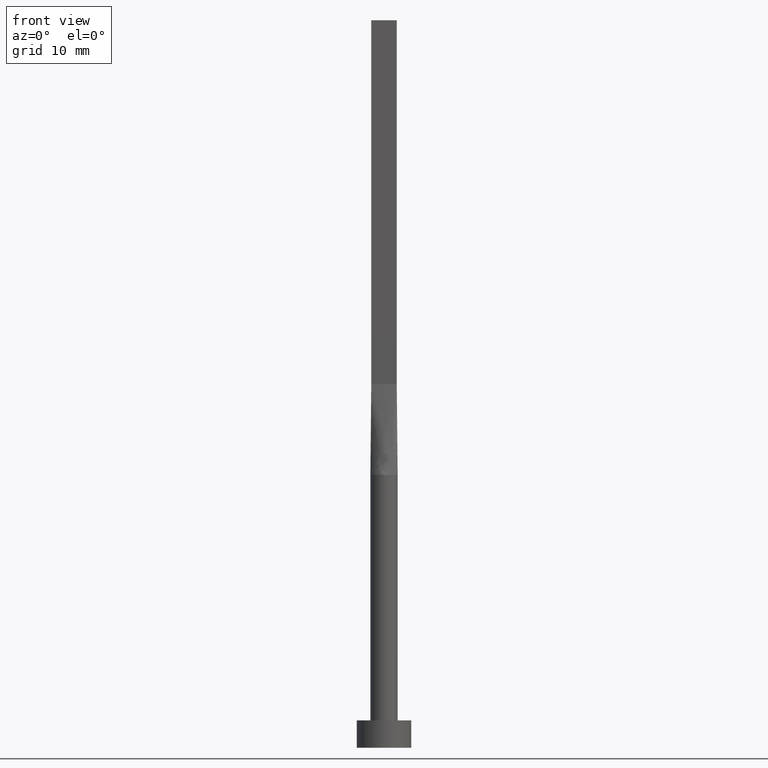
[diagram: clean part render]
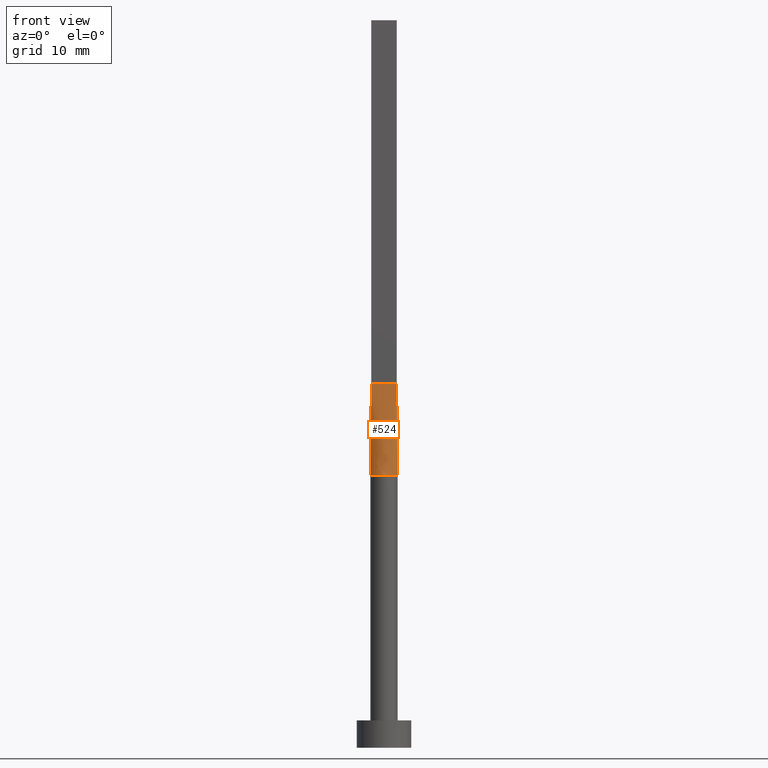
[diagram: same view with one face highlighted and labeled with its STEP entity id]
A machine part, front view. The second image highlights one B-rep face of the part: STEP entity #524.
In plain terms, the highlighted face is a freeform B-spline surface patch.
Its self-contained STEP definition (entity closure, byte-faithful):
#1 = CIRCLE ( 'NONE', #76, 1.500000000000000222 ) ;
#11 = CARTESIAN_POINT ( 'NONE',  ( 0.4035854070682468042, -1.457676878506885210, 30.00000000000000355 ) ) ;
#17 = CARTESIAN_POINT ( 'NONE',  ( 0.1166666666666671959, -0.2999999999999997113, 39.99999999999999289 ) ) ;
#19 = ORIENTED_EDGE ( 'NONE', *, *, #304, .T. ) ;
#59 = CARTESIAN_POINT ( 'NONE',  ( -1.283333333333333215, -0.2999999999999996003, 39.99999999999999289 ) ) ;
#65 = DIRECTION ( 'NONE',  ( 1.000000000000000000, 0.000000000000000000, 0.000000000000000000 ) ) ;
#68 = CARTESIAN_POINT ( 'NONE',  ( 1.399999999999999911, -0.2999999999999997669, 40.00000000000000000 ) ) ;
#72 = CARTESIAN_POINT ( 'NONE',  ( -0.1166666666666661550, -0.2999999999999997669, 40.00000000000000000 ) ) ;
#76 = AXIS2_PLACEMENT_3D ( 'NONE', #291, #286, #65 ) ;
#91 = CARTESIAN_POINT ( 'NONE',  ( 0.7614511870148451544, -1.306864626778804439, 30.00000000000001066 ) ) ;
#100 = CARTESIAN_POINT ( 'NONE',  ( 1.466854622690809462, -0.3143260906982852099, 30.00000000000000000 ) ) ;
#104 = CARTESIAN_POINT ( 'NONE',  ( 0.9333333333333337922, -0.2999999999999997113, 39.99999999999999289 ) ) ;
#108 = CARTESIAN_POINT ( 'NONE',  ( 1.399999999999999911, -0.2999999999999997669, 40.00000000000000000 ) ) ;
#111 = LINE ( 'NONE', #414, #409 ) ;
#112 = CARTESIAN_POINT ( 'NONE',  ( -0.2333333333333328374, -0.2999999999999997113, 39.99999999999999289 ) ) ;
#115 = CARTESIAN_POINT ( 'NONE',  ( 0.8166666666666669849, -0.2999999999999997113, 39.99999999999999289 ) ) ;
#138 = VECTOR ( 'NONE', #562, 1000.000000000000000 ) ;
#145 = FACE_OUTER_BOUND ( 'NONE', #567, .T. ) ;
#152 = CARTESIAN_POINT ( 'NONE',  ( 0.5833333333333337034, -0.2999999999999997113, 39.99999999999999289 ) ) ;
#157 = CARTESIAN_POINT ( 'NONE',  ( -1.166666666666666297, -0.2999999999999996003, 39.99999999999999289 ) ) ;
#160 = VERTEX_POINT ( 'NONE', #303 ) ;
#161 = EDGE_CURVE ( 'NONE', #160, #530, #215, .T. ) ;
#184 = CARTESIAN_POINT ( 'NONE',  ( 0.2333333333333338366, -0.2999999999999997113, 39.99999999999999289 ) ) ;
#198 = CARTESIAN_POINT ( 'NONE',  ( -1.398339371956842880, -0.5625704264602655602, 29.99999999999999289 ) ) ;
#202 = CARTESIAN_POINT ( 'NONE',  ( -0.5833333333333329263, -0.2999999999999996558, 39.99999999999999289 ) ) ;
#208 = VERTEX_POINT ( 'NONE', #100 ) ;
#209 = VECTOR ( 'NONE', #580, 1000.000000000000114 ) ;
#215 = LINE ( 'NONE', #517, #138 ) ;
#229 = LINE ( 'NONE', #332, #209 ) ;
#242 = CARTESIAN_POINT ( 'NONE',  ( -1.261673556793542206, -0.8246322331683838547, 29.99999999999998934 ) ) ;
#245 = DIRECTION ( 'NONE',  ( -0.006670206908340743472, -0.001429330051787282068, -0.9999767324070110153 ) ) ;
#252 = CARTESIAN_POINT ( 'NONE',  ( -0.4035854070682473038, -1.457676878506884988, 30.00000000000001066 ) ) ;
#273 = CARTESIAN_POINT ( 'NONE',  ( 1.166666666666666963, -0.2999999999999997113, 39.99999999999999289 ) ) ;
#278 = CARTESIAN_POINT ( 'NONE',  ( -1.466837926445876628, -0.3143226152917824034, 30.00000000000000000 ) ) ;
#284 = CARTESIAN_POINT ( 'NONE',  ( -1.399999999999999911, -0.2999999999999996003, 40.00000000000000000 ) ) ;
#286 = DIRECTION ( 'NONE',  ( 0.000000000000000000, 0.000000000000000000, 1.000000000000000000 ) ) ;
#290 = CARTESIAN_POINT ( 'NONE',  ( -0.8166666666666663188, -0.2999999999999996003, 39.99999999999999289 ) ) ;
#291 = CARTESIAN_POINT ( 'NONE',  ( 0.000000000000000000, 0.000000000000000000, 30.00000000000000000 ) ) ;
#294 = CARTESIAN_POINT ( 'NONE',  ( 1.283333333333333437, -0.2999999999999997113, 39.99999999999999289 ) ) ;
#303 = CARTESIAN_POINT ( 'NONE',  ( -1.399999999999999911, -0.2999999999999996003, 40.00000000000000000 ) ) ;
#304 = EDGE_CURVE ( 'NONE', #351, #208, #1, .T. ) ;
#322 = CARTESIAN_POINT ( 'NONE',  ( -1.466703621116114409, -0.3142936330963096436, 30.00000000000000000 ) ) ;
#328 = CARTESIAN_POINT ( 'NONE',  ( 0.4666666666666671737, -0.2999999999999997113, 39.99999999999999289 ) ) ;
#332 = CARTESIAN_POINT ( 'NONE',  ( 1.433351810558057160, -0.3071468165481548440, 35.00000000000000000 ) ) ;
#336 = CARTESIAN_POINT ( 'NONE',  ( 0.9173979595380676866, -1.199399801402031063, 30.00000000000000711 ) ) ;
#351 = VERTEX_POINT ( 'NONE', #278 ) ;
#361 = EDGE_CURVE ( 'NONE', #160, #351, #111, .T. ) ;
#375 = ORIENTED_EDGE ( 'NONE', *, *, #361, .T. ) ;
#377 = CARTESIAN_POINT ( 'NONE',  ( -0.7614511870148455985, -1.306864626778803995, 30.00000000000000711 ) ) ;
#409 = VECTOR ( 'NONE', #245, 1000.000000000000114 ) ;
#414 = CARTESIAN_POINT ( 'NONE',  ( -1.433351810558057160, -0.3071468165481546220, 35.00000000000000000 ) ) ;
#425 = CARTESIAN_POINT ( 'NONE',  ( -1.167251067653077845, -0.9579686032593084377, 30.00000000000000355 ) ) ;
#430 = CARTESIAN_POINT ( 'NONE',  ( 1.167251067653077401, -0.9579686032593089928, 30.00000000000001066 ) ) ;
#433 = ORIENTED_EDGE ( 'NONE', *, *, #561, .T. ) ;
#451 = CARTESIAN_POINT ( 'NONE',  ( 1.261673556793541762, -0.8246322331683848539, 30.00000000000000000 ) ) ;
#461 = CARTESIAN_POINT ( 'NONE',  ( -1.441093865018553632, -0.4338058282182608583, 29.99999999999999645 ) ) ;
#462 = CARTESIAN_POINT ( 'NONE',  ( -0.4666666666666662300, -0.2999999999999997113, 39.99999999999999289 ) ) ;
#468 = CARTESIAN_POINT ( 'NONE',  ( 1.441093865018553410, -0.4338058282182614689, 30.00000000000000355 ) ) ;
#472 = CARTESIAN_POINT ( 'NONE',  ( -0.9333333333333329040, -0.2999999999999996003, 39.99999999999999289 ) ) ;
#476 = CARTESIAN_POINT ( 'NONE',  ( -0.2021039475585066081, -1.499999999999999778, 30.00000000000000000 ) ) ;
#507 = CARTESIAN_POINT ( 'NONE',  ( 1.398339371956842880, -0.5625704264602661153, 29.99999999999999645 ) ) ;
#517 = CARTESIAN_POINT ( 'NONE',  ( -1.399999999999999911, -0.2999999999999996003, 40.00000000000000000 ) ) ;
#524 = ADVANCED_FACE ( 'NONE', ( #145 ), #533, .T. ) ;
#530 = VERTEX_POINT ( 'NONE', #108 ) ;
#533 = B_SPLINE_SURFACE_WITH_KNOTS ( 'NONE', 3, 1, ( 
 ( #322, #284 ),
 ( #461, #59 ),
 ( #198, #157 ),
 ( #242, #472 ),
 ( #425, #290 ),
 ( #547, #202 ),
 ( #377, #462 ),
 ( #252, #112 ),
 ( #476, #72 ),
 ( #551, #17 ),
 ( #11, #184 ),
 ( #91, #328 ),
 ( #336, #152 ),
 ( #430, #115 ),
 ( #451, #104 ),
 ( #507, #273 ),
 ( #468, #294 ),
 ( #554, #68 ) ),
 .UNSPECIFIED., .F., .F., .F.,
 ( 4, 2, 2, 2, 2, 2, 2, 2, 4 ),
 ( 2, 2 ),
 ( 0.000000000000000000, 0.1250000000000000000, 0.2500000000000000000, 0.3750000000000000000, 0.5000000000000000000, 0.6250000000000000000, 0.7500000000000000000, 0.8750000000000000000, 1.000000000000000000 ),
 ( 0.000000000000000000, 1.000000000000000000 ),
 .UNSPECIFIED. ) ;
#547 = CARTESIAN_POINT ( 'NONE',  ( -0.9173979595380682417, -1.199399801402030397, 30.00000000000001066 ) ) ;
#551 = CARTESIAN_POINT ( 'NONE',  ( 0.2021039475585061640, -1.499999999999999778, 30.00000000000000000 ) ) ;
#554 = CARTESIAN_POINT ( 'NONE',  ( 1.466703621116114409, -0.3142936330963098657, 30.00000000000000000 ) ) ;
#561 = EDGE_CURVE ( 'NONE', #208, #530, #229, .T. ) ;
#562 = DIRECTION ( 'NONE',  ( 1.000000000000000000, -5.808225924029488744E-17, 0.000000000000000000 ) ) ;
#567 = EDGE_LOOP ( 'NONE', ( #19, #433, #574, #375 ) ) ;
#574 = ORIENTED_EDGE ( 'NONE', *, *, #161, .F. ) ;
#580 = DIRECTION ( 'NONE',  ( -0.006670206908340743472, 0.001429330051787287706, 0.9999767324070110153 ) ) ;